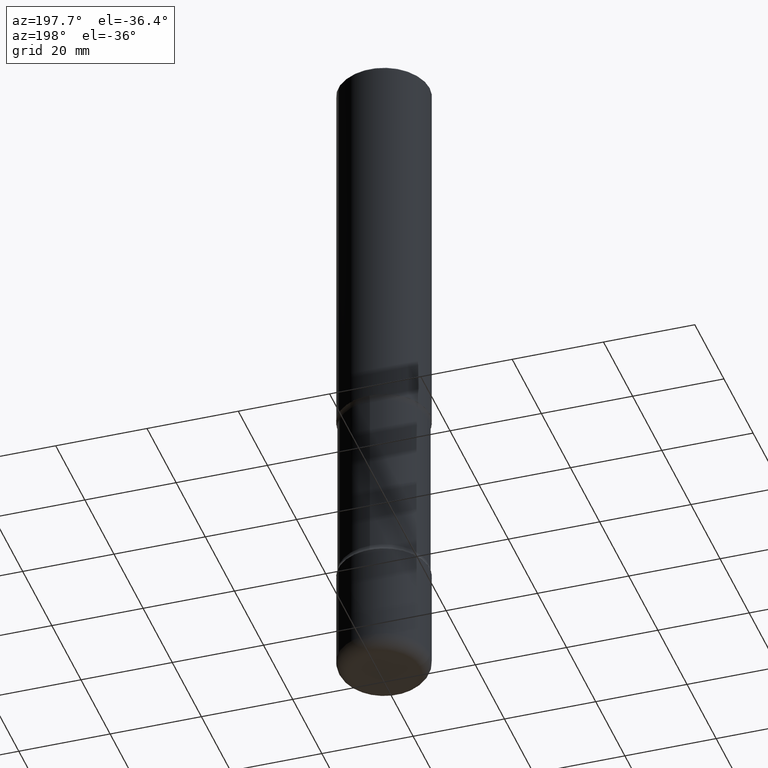
[diagram: clean part render]
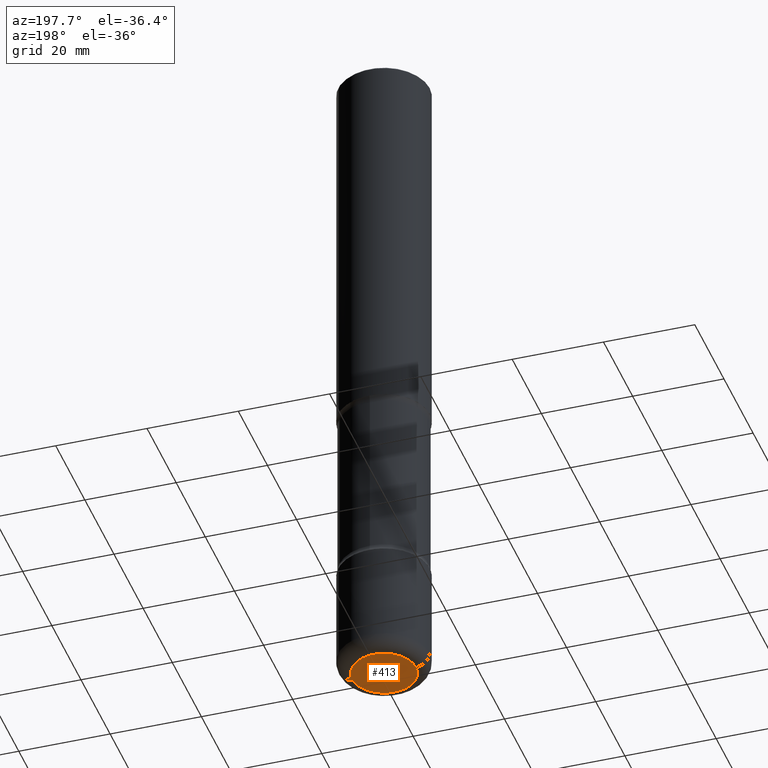
[diagram: same view with one face highlighted and labeled with its STEP entity id]
A machine part, auxiliary view. The second image highlights one B-rep face of the part: STEP entity #413.
In plain terms, the highlighted planar face has unit normal (0, -0, -1).
Its self-contained STEP definition (entity closure, byte-faithful):
#21 = VERTEX_POINT ( 'NONE', #380 ) ;
#90 = CARTESIAN_POINT ( 'NONE',  ( 1.444171603492632270E-28, -2.061894304653819197E-14, -5.905499999999999972 ) ) ;
#133 = AXIS2_PLACEMENT_3D ( 'NONE', #429, #474, #298 ) ;
#138 = DIRECTION ( 'NONE',  ( 1.000000000000000000, -6.982962677686261977E-15, 0.000000000000000000 ) ) ;
#194 = AXIS2_PLACEMENT_3D ( 'NONE', #487, #522, #138 ) ;
#198 = EDGE_LOOP ( 'NONE', ( #411, #248 ) ) ;
#213 = DIRECTION ( 'NONE',  ( 2.438088387897960049E-29, -3.491481338843145188E-15, -1.000000000000000000 ) ) ;
#219 = EDGE_CURVE ( 'NONE', #442, #21, #244, .T. ) ;
#244 = CIRCLE ( 'NONE', #194, 0.2756000000000001782 ) ;
#248 = ORIENTED_EDGE ( 'NONE', *, *, #219, .F. ) ;
#298 = DIRECTION ( 'NONE',  ( 1.000000000000000000, -6.982962677686261977E-15, 0.000000000000000000 ) ) ;
#380 = CARTESIAN_POINT ( 'NONE',  ( 0.2756000000000001782, -2.254344756050852692E-14, -5.905499999999999972 ) ) ;
#384 = CARTESIAN_POINT ( 'NONE',  ( -0.2756000000000001782, -1.803493980825833276E-14, -5.905499999999999972 ) ) ;
#411 = ORIENTED_EDGE ( 'NONE', *, *, #476, .F. ) ;
#413 = ADVANCED_FACE ( 'NONE', ( #506 ), #432, .T. ) ;
#429 = CARTESIAN_POINT ( 'NONE',  ( 1.444171603492632270E-28, -2.061894304653819197E-14, -5.905499999999999972 ) ) ;
#432 = PLANE ( 'NONE',  #546 ) ;
#442 = VERTEX_POINT ( 'NONE', #384 ) ;
#474 = DIRECTION ( 'NONE',  ( -2.445468806185136597E-29, 3.491481338843145583E-15, 1.000000000000000000 ) ) ;
#476 = EDGE_CURVE ( 'NONE', #21, #442, #496, .T. ) ;
#487 = CARTESIAN_POINT ( 'NONE',  ( 1.444171603492632270E-28, -2.061894304653819197E-14, -5.905499999999999972 ) ) ;
#496 = CIRCLE ( 'NONE', #133, 0.2756000000000001782 ) ;
#506 = FACE_OUTER_BOUND ( 'NONE', #198, .T. ) ;
#522 = DIRECTION ( 'NONE',  ( -2.445468806185136597E-29, 3.491481338843145583E-15, 1.000000000000000000 ) ) ;
#546 = AXIS2_PLACEMENT_3D ( 'NONE', #90, #213, #552 ) ;
#552 = DIRECTION ( 'NONE',  ( -1.000000000000000000, 6.982962677686265922E-15, -4.876176775795935793E-29 ) ) ;